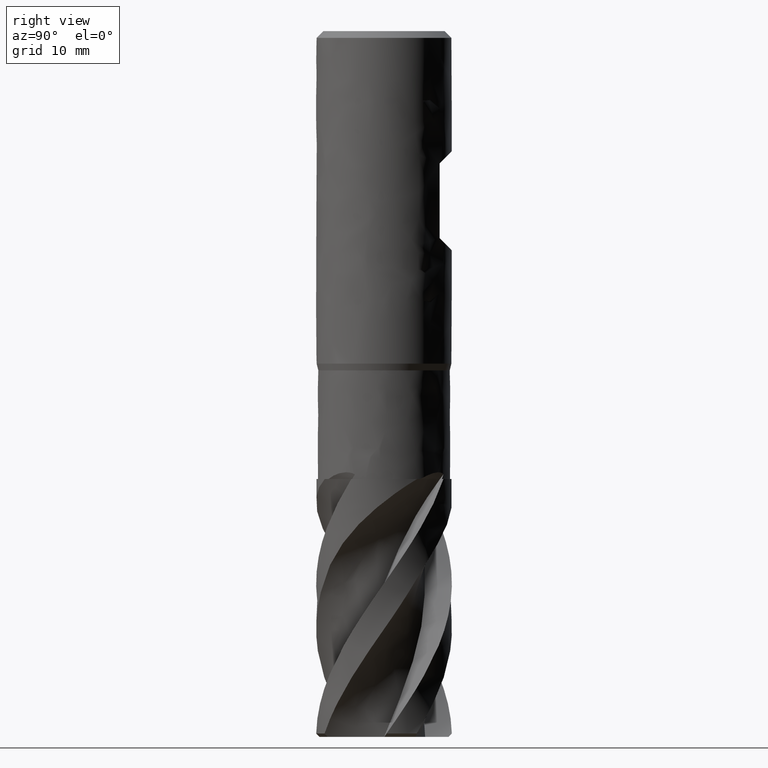
[diagram: clean part render]
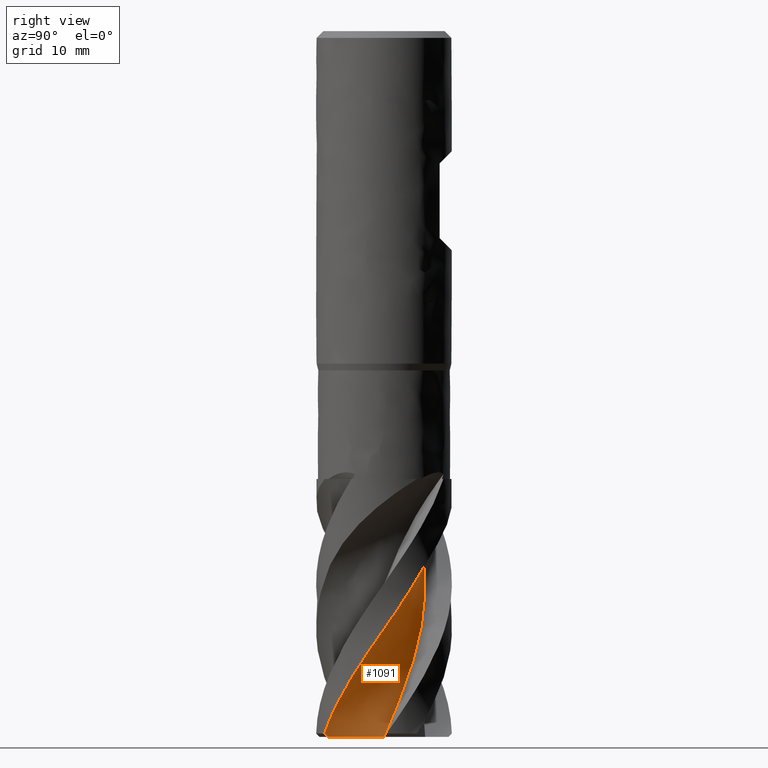
[diagram: same view with one face highlighted and labeled with its STEP entity id]
A machine part, right view. The second image highlights one B-rep face of the part: STEP entity #1091.
In plain terms, the highlighted face is a freeform B-spline surface patch.
Its self-contained STEP definition (entity closure, byte-faithful):
#1091 = ADVANCED_FACE('', (#1092), #1348, .T.);
#1092 = FACE_OUTER_BOUND('', #1093, .T.);
#1093 = EDGE_LOOP('', (#1094, #1104, #1299, #1311, #1319));
#1094 = ORIENTED_EDGE('', *, *, #1095, .F.);
#1095 = EDGE_CURVE('', #1096, #1098, #1100, .T.);
#1096 = VERTEX_POINT('', #1097);
#1097 = CARTESIAN_POINT('', (-4.8692228382424, 8.73445298524977, -66.));
#1098 = VERTEX_POINT('', #1099);
#1099 = CARTESIAN_POINT('', (-8.24481654069184, 4.54373744884962, -66.));
#1100 = LINE('', #1101, #1102);
#1101 = CARTESIAN_POINT('', (-4.8692228382424, 8.73445298524977, -66.));
#1102 = VECTOR('', #1103, 5.38114574705442);
#1103 = DIRECTION('', (-3.37559370244944, -4.19071553640015, 0.));
#1104 = ORIENTED_EDGE('', *, *, #1105, .F.);
#1105 = EDGE_CURVE('', #1106, #1096, #1108, .T.);
#1106 = VERTEX_POINT('', #1107);
#1107 = CARTESIAN_POINT('', (4.82102434027679, -8.76114857255934, -103.5));
#1108 = B_SPLINE_CURVE_WITH_KNOTS('', 3, (#1109, #1110, #1111, #1112, #1113, #1114, #1115, #1116, #1117, #1118, #1119, #1120, #1121, #1122, #1123, #1124, #1125, #1126, #1127, #1128, #1129, #1130, #1131, #1132, #1133, #1134, #1135, #1136, #1137, #1138, #1139, #1140, #1141, #1142, #1143, #1144, #1145, #1146, #1147, #1148, #1149, #1150, #1151, #1152, #1153, #1154, #1155, #1156, #1157, #1158, #1159, #1160, #1161, #1162, #1163, #1164, #1165, #1166, #1167, #1168, #1169, #1170, #1171, #1172, #1173, #1174, #1175, #1176, #1177, #1178, #1179, #1180, #1181, #1182, #1183, #1184, #1185, #1186, #1187, #1188, #1189, #1190, #1191, #1192, #1193, #1194, #1195, #1196, #1197, #1198, #1199, #1200, #1201, #1202, #1203, #1204, #1205, #1206, #1207, #1208, #1209, #1210, #1211, #1212, #1213, #1214, #1215, #1216, #1217, #1218, #1219, #1220, #1221, #1222, #1223, #1224, #1225, #1226, #1227, #1228, #1229, #1230, #1231, #1232, #1233, #1234, #1235, #1236, #1237, #1238, #1239, #1240, #1241, #1242, #1243, #1244, #1245, #1246, #1247, #1248, #1249, #1250, #1251, #1252, #1253, #1254, #1255, #1256, #1257, #1258, #1259, #1260, #1261, #1262, #1263, #1264, #1265, #1266, #1267, #1268, #1269, #1270, #1271, #1272, #1273, #1274, #1275, #1276, #1277, #1278, #1279, #1280, #1281, #1282, #1283, #1284, #1285, #1286, #1287, #1288, #1289, #1290, #1291, #1292, #1293, #1294, #1295, #1296, #1297, #1298), .UNSPECIFIED., .F., .U., (4, 3, 3, 3, 3, 3, 3, 3, 3, 3, 3, 3, 3, 3, 3, 3, 3, 3, 3, 3, 3, 3, 3, 3, 3, 3, 3, 3, 3, 3, 3, 3, 3, 3, 3, 3, 3, 3, 3, 3, 3, 3, 3, 3, 3, 3, 3, 3, 3, 3, 3, 3, 3, 3, 3, 3, 3, 3, 3, 3, 3, 3, 3, 4), (0., 1.49754865878035, 2.9946564324197, 4.4913227213965, 5.48887938148267, 6.48630614610458, 7.48360218909773, 8.48076755739883, 9.47780094344113, 10.4747017808828, 11.4714686570907, 12.468100568227, 13.4645954044111, 14.4609512740092, 15.4571669964957, 16.4532380941348, 17.4491618672605, 18.4449482064508, 18.641926417188, 18.7294906373654, 19.7288855633041, 20.1725885448589, 20.6162813108669, 21.6153525150667, 22.2810030914839, 23.7799583920081, 24.4454859465234, 25.4439228240565, 25.8874290066121, 26.3309380755024, 26.7744905960932, 27.218055734242, 27.6616013664374, 27.8586778512121, 28.5240455080343, 29.1894029692963, 29.8547809505871, 30.8531823312348, 31.8515130529255, 32.8497897681561, 33.8480551389011, 34.8462995150205, 35.8445019418809, 36.842653307668, 37.8407277951894, 38.8387112350426, 39.5038676079721, 40.1689758965266, 40.8340278425068, 41.4990041445852, 42.163896140861, 42.828693616057, 43.2718947109043, 43.3302773688159, 43.9993215176086, 44.6683759008422, 45.3374370949522, 46.0064956341405, 46.675534840082, 47.3445481982361, 48.013526469005, 48.6824569335344, 49.351322382157, 49.4218261233385), .UNSPECIFIED.);
#1109 = CARTESIAN_POINT('', (4.8210243402768, -8.76114857255934, -103.5));
#1110 = CARTESIAN_POINT('', (5.06933176543663, -8.62451167721933, -103.089077458178));
#1111 = CARTESIAN_POINT('', (5.31197264230089, -8.47722758047882, -102.678094176002));
#1112 = CARTESIAN_POINT('', (5.5479417083475, -8.31987636932053, -102.267311082202));
#1113 = CARTESIAN_POINT('', (5.78384130402708, -8.16257148307497, -101.856648924816));
#1114 = CARTESIAN_POINT('', (6.0132085196084, -7.99511345603136, -101.445946114455));
#1115 = CARTESIAN_POINT('', (6.23505221071147, -7.81819185807703, -101.035433046596));
#1116 = CARTESIAN_POINT('', (6.45683048195043, -7.6413224328342, -100.625041035635));
#1117 = CARTESIAN_POINT('', (6.67121654320606, -7.45489464995635, -100.214595849154));
#1118 = CARTESIAN_POINT('', (6.87729953648057, -7.2596660450412, -99.8043452068072));
#1119 = CARTESIAN_POINT('', (7.01465778660326, -7.12954245202196, -99.5309053200457));
#1120 = CARTESIAN_POINT('', (7.14837211475213, -6.99547065944866, -99.2574610161364));
#1121 = CARTESIAN_POINT('', (7.27818676127804, -6.85769622161532, -98.9840836728247));
#1122 = CARTESIAN_POINT('', (7.40798450416885, -6.71993972389033, -98.7107419269665));
#1123 = CARTESIAN_POINT('', (7.53391871224153, -6.5784442326247, -98.4373970073934));
#1124 = CARTESIAN_POINT('', (7.65574710421175, -6.43347000275538, -98.1641199824946));
#1125 = CARTESIAN_POINT('', (7.7775595294901, -6.28851477304539, -97.890878772975));
#1126 = CARTESIAN_POINT('', (7.8952977037658, -6.14004547585186, -97.6176324699006));
#1127 = CARTESIAN_POINT('', (8.0087356025241, -5.98833483105804, -97.3444534671684));
#1128 = CARTESIAN_POINT('', (8.12215863762923, -5.8366440647566, -97.0713102588047));
#1129 = CARTESIAN_POINT('', (8.23131311459079, -5.68167180659219, -96.7981638231249));
#1130 = CARTESIAN_POINT('', (8.33598712083889, -5.52370516240757, -96.5250851211179));
#1131 = CARTESIAN_POINT('', (8.44064727270314, -5.36575942628412, -96.2520425631098));
#1132 = CARTESIAN_POINT('', (8.54085446400764, -5.20478046763777, -95.9789945717451));
#1133 = CARTESIAN_POINT('', (8.63641514457152, -5.04106471398807, -95.7060144446873));
#1134 = CARTESIAN_POINT('', (8.7319631210127, -4.87737072520035, -95.4330706084241));
#1135 = CARTESIAN_POINT('', (8.82289134904552, -4.71089676339513, -95.160123534287));
#1136 = CARTESIAN_POINT('', (8.90902105913758, -4.54195373906902, -94.8872437015907));
#1137 = CARTESIAN_POINT('', (8.99513919531797, -4.37303341691664, -94.6144005378567));
#1138 = CARTESIAN_POINT('', (9.07648190042256, -4.20160216996309, -94.3415512685048));
#1139 = CARTESIAN_POINT('', (9.15289089379604, -4.02797570576903, -94.0687705557064));
#1140 = CARTESIAN_POINT('', (9.22928954117439, -3.85437275109229, -93.7960267781927));
#1141 = CARTESIAN_POINT('', (9.30077608163202, -3.67852883038715, -93.5232799886487));
#1142 = CARTESIAN_POINT('', (9.3672078875395, -3.50077368471855, -93.2506010002422));
#1143 = CARTESIAN_POINT('', (9.43363055653642, -3.3230429871715, -92.9779595156112));
#1144 = CARTESIAN_POINT('', (9.4950170498378, -3.14335580073911, -92.7053129350069));
#1145 = CARTESIAN_POINT('', (9.55124483625152, -2.96204694054277, -92.4327343514784));
#1146 = CARTESIAN_POINT('', (9.60746478139678, -2.78076336484607, -92.1601937805054));
#1147 = CARTESIAN_POINT('', (9.65854222083171, -2.5978105430186, -91.887649085124));
#1148 = CARTESIAN_POINT('', (9.70437237413134, -2.41353616591854, -91.6151691209638));
#1149 = CARTESIAN_POINT('', (9.75019608097563, -2.22928770879593, -91.3427274837519));
#1150 = CARTESIAN_POINT('', (9.79078614235025, -2.04367043289176, -91.0702775416893));
#1151 = CARTESIAN_POINT('', (9.8260608138677, -1.85702150826909, -90.797899810892));
#1152 = CARTESIAN_POINT('', (9.86133036441197, -1.67039968025977, -90.5255616223213));
#1153 = CARTESIAN_POINT('', (9.891295225092, -1.48269698485618, -90.2532232687063));
#1154 = CARTESIAN_POINT('', (9.91589020080265, -1.2942648591484, -89.9809584013251));
#1155 = CARTESIAN_POINT('', (9.94048153877817, -1.10586060361103, -89.7087338034478));
#1156 = CARTESIAN_POINT('', (9.95971051028876, -0.91667827427532, -89.4365093701406));
#1157 = CARTESIAN_POINT('', (9.97353155049018, -0.727095874955745, -89.1643428369051));
#1158 = CARTESIAN_POINT('', (9.98735068343726, -0.537539637332398, -88.8922138616823));
#1159 = CARTESIAN_POINT('', (9.9957671604, -0.347529924403605, -88.6200724487908));
#1160 = CARTESIAN_POINT('', (9.99876034984672, -0.157453060732589, -88.3479722071021));
#1161 = CARTESIAN_POINT('', (9.99935243780617, -0.119853628972055, -88.294147589672));
#1162 = CARTESIAN_POINT('', (9.99973241650497, -0.0822515452989682, -88.2403220735981));
#1163 = CARTESIAN_POINT('', (9.9999003073346, -0.044652473273989, -88.1864942102382));
#1164 = CARTESIAN_POINT('', (9.99997494112031, -0.0279382722009901, -88.1625657012865));
#1165 = CARTESIAN_POINT('', (10.0000076660169, -0.0112246089065598, -88.1386366492696));
#1166 = CARTESIAN_POINT('', (9.99999849407855, 0.00548802575965491, -88.1147069316208));
#1167 = CARTESIAN_POINT('', (9.99989381218203, 0.196233997694817, -87.8415903738653));
#1168 = CARTESIAN_POINT('', (9.9943229178705, 0.386867114845846, -87.5683427925541));
#1169 = CARTESIAN_POINT('', (9.98335700972081, 0.576699936239934, -87.2948104550361));
#1170 = CARTESIAN_POINT('', (9.97848845774481, 0.660980320964121, -87.1733698607742));
#1171 = CARTESIAN_POINT('', (9.97255742885975, 0.74511128721054, -87.0518634268069));
#1172 = CARTESIAN_POINT('', (9.96557551684418, 0.829038369483475, -86.9302813485715));
#1173 = CARTESIAN_POINT('', (9.95859376557591, 0.912963519470459, -86.8087020695676));
#1174 = CARTESIAN_POINT('', (9.95056129854452, 0.996686228223349, -86.6870387049043));
#1175 = CARTESIAN_POINT('', (9.94148932971309, 1.08018049750992, -86.565300859055));
#1176 = CARTESIAN_POINT('', (9.92106180977304, 1.26818608730224, -86.2911815008703));
#1177 = CARTESIAN_POINT('', (9.89535813931469, 1.45507433450079, -86.0166370030639));
#1178 = CARTESIAN_POINT('', (9.86451136111236, 1.64055344517834, -85.7417719749637));
#1179 = CARTESIAN_POINT('', (9.84395909656436, 1.76413250182302, -85.5586378163345));
#1180 = CARTESIAN_POINT('', (9.82112119975915, 1.88710287799704, -85.3753343114277));
#1181 = CARTESIAN_POINT('', (9.79604112861646, 2.00937259025168, -85.1918856636466));
#1182 = CARTESIAN_POINT('', (9.73956419175387, 2.28470748782531, -84.7787840564258));
#1183 = CARTESIAN_POINT('', (9.67168650528452, 2.5566036423033, -84.3647826941756));
#1184 = CARTESIAN_POINT('', (9.59294486762857, 2.82407662194896, -83.9501625695236));
#1185 = CARTESIAN_POINT('', (9.55798403221916, 2.94283309052427, -83.7660736126908));
#1186 = CARTESIAN_POINT('', (9.52087519926613, 3.06074360660765, -83.581832506193));
#1187 = CARTESIAN_POINT('', (9.48167724976666, 3.17770302754322, -83.3974467218216));
#1188 = CARTESIAN_POINT('', (9.42287175322722, 3.35316773707284, -83.1208277215109));
#1189 = CARTESIAN_POINT('', (9.35935130877508, 3.52652152474307, -82.8438244944696));
#1190 = CARTESIAN_POINT('', (9.2913649620807, 3.69736894851187, -82.5664203912174));
#1191 = CARTESIAN_POINT('', (9.2611653913649, 3.77325946339587, -82.4431973436446));
#1192 = CARTESIAN_POINT('', (9.23008309563675, 3.8486611869761, -82.3198854704044));
#1193 = CARTESIAN_POINT('', (9.19814325777488, 3.92353929627966, -82.1964819887746));
#1194 = CARTESIAN_POINT('', (9.16620321204879, 3.99841789288936, -82.0730777040358));
#1195 = CARTESIAN_POINT('', (9.13340921204072, 4.07276981956737, -81.9495709463683));
#1196 = CARTESIAN_POINT('', (9.09967498960817, 4.14679576100626, -81.8261296628605));
#1197 = CARTESIAN_POINT('', (9.0659374621489, 4.22082895495308, -81.7026762854992));
#1198 = CARTESIAN_POINT('', (9.03125729942422, 4.29454045770886, -81.5792830420388));
#1199 = CARTESIAN_POINT('', (8.9955398635748, 4.36809598828102, -81.4561013889994));
#1200 = CARTESIAN_POINT('', (8.95982141168601, 4.44165361125742, -81.3329162318616));
#1201 = CARTESIAN_POINT('', (8.92306328648133, 4.5150594317706, -81.2099362509475));
#1202 = CARTESIAN_POINT('', (8.88517022557233, 4.58843655972304, -81.0872943834196));
#1203 = CARTESIAN_POINT('', (8.84727883102575, 4.6618104608871, -80.9646579091166));
#1204 = CARTESIAN_POINT('', (8.80824979853309, 4.73516042152218, -80.8423516907574));
#1205 = CARTESIAN_POINT('', (8.7679933800104, 4.80856445190183, -80.7204892228932));
#1206 = CARTESIAN_POINT('', (8.75010662185926, 4.84117937858686, -80.666343211639));
#1207 = CARTESIAN_POINT('', (8.73197658960017, 4.87380630442319, -80.6122841431315));
#1208 = CARTESIAN_POINT('', (8.71359833781752, 4.90644514971724, -80.5583174336352));
#1209 = CARTESIAN_POINT('', (8.65154986796029, 5.01664009275929, -80.3761155687856));
#1210 = CARTESIAN_POINT('', (8.58667660466838, 5.1269576137656, -80.1949253636102));
#1211 = CARTESIAN_POINT('', (8.51897941757993, 5.23707835370574, -80.0147005841439));
#1212 = CARTESIAN_POINT('', (8.45128326782885, 5.34719740624403, -79.8344785662975));
#1213 = CARTESIAN_POINT('', (8.38075104328958, 5.45714053429752, -79.6551892482231));
#1214 = CARTESIAN_POINT('', (8.30738365231508, 5.56663065536513, -79.4768129900779));
#1215 = CARTESIAN_POINT('', (8.23401399864562, 5.67612415317465, -79.2984312307005));
#1216 = CARTESIAN_POINT('', (8.15779609140809, 5.78518468998466, -79.1209290165671));
#1217 = CARTESIAN_POINT('', (8.07872783540295, 5.89356908515439, -78.9443135642512));
#1218 = CARTESIAN_POINT('', (7.96008571290919, 6.05620015023445, -78.679301621575));
#1219 = CARTESIAN_POINT('', (7.834973315312, 6.21737866904356, -78.4161987261904));
#1220 = CARTESIAN_POINT('', (7.70335952237291, 6.37638236534374, -78.1551397665836));
#1221 = CARTESIAN_POINT('', (7.57175504401764, 6.53537480861927, -77.8940992826662));
#1222 = CARTESIAN_POINT('', (7.43358720988196, 6.69226832134353, -77.6349841473585));
#1223 = CARTESIAN_POINT('', (7.28888153510546, 6.84632791846832, -77.377950339841));
#1224 = CARTESIAN_POINT('', (7.14418368843747, 7.00037918146768, -77.1209304370204));
#1225 = CARTESIAN_POINT('', (6.99288699350944, 7.15165985561167, -76.8658514070721));
#1226 = CARTESIAN_POINT('', (6.83513391350451, 7.29937972600827, -76.6128271107152));
#1227 = CARTESIAN_POINT('', (6.67738262621651, 7.44709791770603, -76.3598056897438));
#1228 = CARTESIAN_POINT('', (6.51309064163799, 7.59133513209592, -76.1087063128745));
#1229 = CARTESIAN_POINT('', (6.34244219374665, 7.73132763624607, -75.859693906991));
#1230 = CARTESIAN_POINT('', (6.17179733478104, 7.87131719619893, -75.610686738114));
#1231 = CARTESIAN_POINT('', (5.99470436163938, 8.00713609310058, -75.3636199040151));
#1232 = CARTESIAN_POINT('', (5.81144784077525, 8.13800184283272, -75.1186453787126));
#1233 = CARTESIAN_POINT('', (5.62819902090643, 8.2688620931888, -74.8736811479834));
#1234 = CARTESIAN_POINT('', (5.43867601492786, 8.39484933555393, -74.6306615625604));
#1235 = CARTESIAN_POINT('', (5.24321138959775, 8.51520606468173, -74.3897884685015));
#1236 = CARTESIAN_POINT('', (5.04775676287445, 8.63555663719879, -74.1489276958298));
#1237 = CARTESIAN_POINT('', (4.84623390109916, 8.75035392366979, -73.9100585367206));
#1238 = CARTESIAN_POINT('', (4.63908722517437, 8.85883004223605, -73.6733649170795));
#1239 = CARTESIAN_POINT('', (4.43195650382093, 8.96729780590131, -73.4366895277344));
#1240 = CARTESIAN_POINT('', (4.21905967311638, 9.06952058134919, -73.2020266263435));
#1241 = CARTESIAN_POINT('', (4.00089193788711, 9.16476206463376, -72.9696142115046));
#1242 = CARTESIAN_POINT('', (3.78274410464295, 9.25999485967403, -72.7372229980977));
#1243 = CARTESIAN_POINT('', (3.55915793074333, 9.3483197838594, -72.5069192763265));
#1244 = CARTESIAN_POINT('', (3.33073455857908, 9.42900881854965, -72.2789379586733));
#1245 = CARTESIAN_POINT('', (3.17849028712759, 9.48278809334168, -72.1269883167352));
#1246 = CARTESIAN_POINT('', (3.02403377008233, 9.5331997756051, -71.9760043569644));
#1247 = CARTESIAN_POINT('', (2.86755858287005, 9.58003694010687, -71.8260676433803));
#1248 = CARTESIAN_POINT('', (2.71109470730098, 9.62687071873447, -71.676141768771));
#1249 = CARTESIAN_POINT('', (2.5525552768412, 9.67014760122732, -71.5272082878372));
#1250 = CARTESIAN_POINT('', (2.39214560469936, 9.70966731695387, -71.3793602435207));
#1251 = CARTESIAN_POINT('', (2.23174952116263, 9.74918368489095, -71.2315247236901));
#1252 = CARTESIAN_POINT('', (2.06941994279842, 9.78495894398057, -71.0847205890178));
#1253 = CARTESIAN_POINT('', (1.90538706904953, 9.8167968358882, -70.9390382193192));
#1254 = CARTESIAN_POINT('', (1.74137285262003, 9.84863110651124, -70.793372419729));
#1255 = CARTESIAN_POINT('', (1.57559109822755, 9.87654138838005, -70.6487687334945));
#1256 = CARTESIAN_POINT('', (1.40828676405985, 9.90033981185397, -70.5053270939466));
#1257 = CARTESIAN_POINT('', (1.24100364076261, 9.92413521815993, -70.3619036399529));
#1258 = CARTESIAN_POINT('', (1.07212823137592, 9.94382975632541, -70.2195818872802));
#1259 = CARTESIAN_POINT('', (0.901917880329583, 9.95924415491209, -70.0784755990797));
#1260 = CARTESIAN_POINT('', (0.731731726395322, 9.97465636218709, -69.9373893705562));
#1261 = CARTESIAN_POINT('', (0.560136156924454, 9.98579638017434, -69.7974563311105));
#1262 = CARTESIAN_POINT('', (0.387402217706497, 9.99249315845231, -69.6588045139355));
#1263 = CARTESIAN_POINT('', (0.272245536408774, 9.99695770528872, -69.5663693897551));
#1264 = CARTESIAN_POINT('', (0.156554242652449, 9.99944894445884, -69.4744799677238));
#1265 = CARTESIAN_POINT('', (0.0404155178051998, 9.99991832896255, -69.3831737692637));
#1266 = CARTESIAN_POINT('', (0.0251166218370319, 9.99998016074777, -69.3711460495403));
#1267 = CARTESIAN_POINT('', (0.00980972678597109, 10.000006915453, -69.3591282659154));
#1268 = CARTESIAN_POINT('', (-0.00550496473668832, 9.99999848476805, -69.3471205086207));
#1269 = CARTESIAN_POINT('', (-0.181005791871271, 9.99990187216695, -69.2095159519683));
#1270 = CARTESIAN_POINT('', (-0.357578943349663, 9.99518256313596, -69.0731899632413));
#1271 = CARTESIAN_POINT('', (-0.534911776305566, 9.98568322107055, -68.9382885454334));
#1272 = CARTESIAN_POINT('', (-0.712247321941014, 9.97618373369268, -68.8033850640239));
#1273 = CARTESIAN_POINT('', (-0.890433409282681, 9.96189913866606, -68.669837045429));
#1274 = CARTESIAN_POINT('', (-1.0691421822549, 9.94268248482891, -68.5378106087554));
#1275 = CARTESIAN_POINT('', (-1.24785277445648, 9.92346563536902, -68.4057828280718));
#1276 = CARTESIAN_POINT('', (-1.42718285749289, 9.89930613281671, -68.275205056872));
#1277 = CARTESIAN_POINT('', (-1.60678776863816, 9.87006753100279, -68.1462660092685));
#1278 = CARTESIAN_POINT('', (-1.78639196708784, 9.84082904521143, -68.0173274733119));
#1279 = CARTESIAN_POINT('', (-1.96637451315068, 9.80649433465608, -67.8899541627044));
#1280 = CARTESIAN_POINT('', (-2.14636166678813, 9.76694074904438, -67.7643442841219));
#1281 = CARTESIAN_POINT('', (-2.32634361948146, 9.72738830638085, -67.6387380351871));
#1282 = CARTESIAN_POINT('', (-2.50644007856068, 9.68259304944388, -67.5148181121587));
#1283 = CARTESIAN_POINT('', (-2.68626013515158, 9.63244550912681, -67.3928148325502));
#1284 = CARTESIAN_POINT('', (-2.86607324454037, 9.58229990621932, -67.2708162664396));
#1285 = CARTESIAN_POINT('', (-3.04572727486001, 9.52676959837258, -67.1506542778143));
#1286 = CARTESIAN_POINT('', (-3.22481185865367, 9.46575873748588, -67.0325976277119));
#1287 = CARTESIAN_POINT('', (-3.40388705009409, 9.40475107640312, -66.9145471692635));
#1288 = CARTESIAN_POINT('', (-3.58251838138313, 9.33822050386304, -66.798518601188));
#1289 = CARTESIAN_POINT('', (-3.76027304557863, 9.26608583074329, -66.6848276255973));
#1290 = CARTESIAN_POINT('', (-3.93801500714623, 9.19395631248075, -66.5711447745426));
#1291 = CARTESIAN_POINT('', (-4.11501530448497, 9.11616852454961, -66.4597122307081));
#1292 = CARTESIAN_POINT('', (-4.29081487779879, 9.03265784165771, -66.3509044240202));
#1293 = CARTESIAN_POINT('', (-4.46659736448063, 8.94915527548806, -66.2421071927787));
#1294 = CARTESIAN_POINT('', (-4.64132509888183, 8.85986135696946, -66.1358430027346));
#1295 = CARTESIAN_POINT('', (-4.81450771405765, 8.76473134050779, -66.0325615403337));
#1296 = CARTESIAN_POINT('', (-4.83276253990137, 8.75470387971875, -66.0216748522727));
#1297 = CARTESIAN_POINT('', (-4.85100111381993, 8.74461110698446, -66.0108208102882));
#1298 = CARTESIAN_POINT('', (-4.8692228382424, 8.73445298524977, -66.));
#1299 = ORIENTED_EDGE('', *, *, #1300, .F.);
#1300 = EDGE_CURVE('', #1301, #1106, #1303, .T.);
#1301 = VERTEX_POINT('', #1302);
#1302 = CARTESIAN_POINT('', (4.62371289531529, -8.29887215600379, -104.));
#1303 = B_SPLINE_CURVE_WITH_KNOTS('', 3, (#1304, #1305, #1306, #1307, #1308, #1309, #1310), .UNSPECIFIED., .F., .U., (4, 3, 4), (0., 0.444245753266173, 0.709054296260552), .UNSPECIFIED.);
#1304 = CARTESIAN_POINT('', (4.62371289531529, -8.29887215600379, -104.));
#1305 = CARTESIAN_POINT('', (4.66049691470305, -8.3975502868541, -103.895895164494));
#1306 = CARTESIAN_POINT('', (4.70012945210628, -8.4949180770608, -103.791510783005));
#1307 = CARTESIAN_POINT('', (4.74246166665453, -8.5909163780952, -103.687009279781));
#1308 = CARTESIAN_POINT('', (4.76769529460444, -8.64813959303864, -103.624717427566));
#1309 = CARTESIAN_POINT('', (4.79389316604008, -8.70488778932475, -103.56237091321));
#1310 = CARTESIAN_POINT('', (4.82102434027679, -8.76114857255934, -103.5));
#1311 = ORIENTED_EDGE('', *, *, #1312, .F.);
#1312 = EDGE_CURVE('', #1313, #1301, #1315, .T.);
#1313 = VERTEX_POINT('', #1314);
#1314 = CARTESIAN_POINT('', (6.05980952317125, 0.0210061638817328, -104.));
#1315 = LINE('', #1316, #1317);
#1316 = CARTESIAN_POINT('', (6.05980952317125, 0.0210061638817328, -104.));
#1317 = VECTOR('', #1318, 8.44291115565244);
#1318 = DIRECTION('', (-1.43609662785598, -8.31987831988552, -1.4210854715202E-14));
#1319 = ORIENTED_EDGE('', *, *, #1320, .T.);
#1320 = EDGE_CURVE('', #1313, #1098, #1321, .T.);
#1321 = B_SPLINE_CURVE_WITH_KNOTS('', 3, (#1322, #1323, #1324, #1325, #1326, #1327, #1328, #1329, #1330, #1331, #1332, #1333, #1334, #1335, #1336, #1337, #1338, #1339, #1340, #1341, #1342, #1343, #1344, #1345, #1346, #1347), .UNSPECIFIED., .F., .U., (4, 1, 1, 1, 1, 1, 1, 1, 1, 1, 1, 1, 1, 1, 1, 1, 1, 1, 1, 1, 1, 1, 1, 4), (0.0500000000000108, 3.124, 4.686, 6.248, 7.81, 9.372, 10.934, 12.496, 14.058, 15.62, 17.182, 18.744, 20.306, 21.868, 23.43, 24.992, 26.554, 28.116, 29.678, 31.24, 32.802, 34.364, 35.926, 38.05), .UNSPECIFIED.);
#1322 = CARTESIAN_POINT('', (6.05980952317125, 0.0210061638817323, -104.));
#1323 = CARTESIAN_POINT('', (6.05516728982624, 0.451478921269706, -102.975333333333));
#1324 = CARTESIAN_POINT('', (5.97968307938365, 1.0993567282596, -101.43));
#1325 = CARTESIAN_POINT('', (5.74506389234829, 1.93499733724724, -99.364));
#1326 = CARTESIAN_POINT('', (5.50162236334445, 2.54422500359819, -97.802));
#1327 = CARTESIAN_POINT('', (5.19483514754468, 3.12412444108723, -96.24));
#1328 = CARTESIAN_POINT('', (4.82810837840586, 3.66824456030732, -94.678));
#1329 = CARTESIAN_POINT('', (4.40548017147386, 4.17050613968466, -93.116));
#1330 = CARTESIAN_POINT('', (3.93161951667553, 4.62530372034135, -91.554));
#1331 = CARTESIAN_POINT('', (3.41164718816435, 5.02741938781425, -89.992));
#1332 = CARTESIAN_POINT('', (2.85157204005347, 5.37261513881707, -88.43));
#1333 = CARTESIAN_POINT('', (2.25641080543849, 5.65567038822671, -86.868));
#1334 = CARTESIAN_POINT('', (1.6288917266653, 5.85778492249726, -85.306));
#1335 = CARTESIAN_POINT('', (0.982432836130104, 5.97804394589137, -83.744));
#1336 = CARTESIAN_POINT('', (0.327622832683394, 6.01431876480561, -82.182));
#1337 = CARTESIAN_POINT('', (-0.320183963239841, 5.96505771265828, -80.62));
#1338 = CARTESIAN_POINT('', (-0.966344318816843, 5.93773006534497, -79.058));
#1339 = CARTESIAN_POINT('', (-1.6312431577963, 5.91226307926383, -77.496));
#1340 = CARTESIAN_POINT('', (-2.33066014168337, 5.88528136029756, -75.934));
#1341 = CARTESIAN_POINT('', (-3.07928433564887, 5.84342040346166, -74.372));
#1342 = CARTESIAN_POINT('', (-3.88873048805124, 5.77096522685264, -72.81));
#1343 = CARTESIAN_POINT('', (-4.76710713012934, 5.64846437319031, -71.248));
#1344 = CARTESIAN_POINT('', (-5.71832667276983, 5.4539111476265, -69.686));
#1345 = CARTESIAN_POINT('', (-6.86417230553522, 5.12855741870002, -67.9366666666667));
#1346 = CARTESIAN_POINT('', (-7.7304629707723, 4.78778915362057, -66.708));
#1347 = CARTESIAN_POINT('', (-8.24481654069184, 4.54373744884962, -66.));
#1348 = B_SPLINE_SURFACE_WITH_KNOTS('', 3, 1, ((#1349, #1350), (#1351, #1352), (#1353, #1354), (#1355, #1356), (#1357, #1358), (#1359, #1360), (#1361, #1362), (#1363, #1364), (#1365, #1366), (#1367, #1368), (#1369, #1370), (#1371, #1372), (#1373, #1374), (#1375, #1376), (#1377, #1378), (#1379, #1380), (#1381, #1382), (#1383, #1384), (#1385, #1386), (#1387, #1388), (#1389, #1390), (#1391, #1392), (#1393, #1394), (#1395, #1396), (#1397, #1398), (#1399, #1400)), .UNSPECIFIED., .F., .F., .U., (4, 1, 1, 1, 1, 1, 1, 1, 1, 1, 1, 1, 1, 1, 1, 1, 1, 1, 1, 1, 1, 1, 1, 4), (2, 2), (0.0500000000000028, 3.124, 4.686, 6.248, 7.81, 9.372, 10.934, 12.496, 14.058, 15.62, 17.182, 18.744, 20.306, 21.868, 23.43, 24.992, 26.554, 28.116, 29.678, 31.24, 32.802, 34.364, 35.926, 38.0500000000039), (0., 0.887252185996353), .UNSPECIFIED.);
#1349 = CARTESIAN_POINT('', (6.05980952317125, 0.021006163881729, -104.));
#1350 = CARTESIAN_POINT('', (4.48693283489788, -9.09129338810315, -104.));
#1351 = CARTESIAN_POINT('', (6.05516728982624, 0.451478921269704, -102.975333333333));
#1352 = CARTESIAN_POINT('', (5.13043815784113, -8.76781974273512, -102.975333333333));
#1353 = CARTESIAN_POINT('', (5.97968307938365, 1.0993567282596, -101.43));
#1354 = CARTESIAN_POINT('', (6.04857652637291, -8.17804101622794, -101.43));
#1355 = CARTESIAN_POINT('', (5.74506389234829, 1.93499733724724, -99.364));
#1356 = CARTESIAN_POINT('', (7.1318854769909, -7.21106359512252, -99.364));
#1357 = CARTESIAN_POINT('', (5.50162236334445, 2.54422500359819, -97.802));
#1358 = CARTESIAN_POINT('', (7.86845249749558, -6.39729386907718, -97.802));
#1359 = CARTESIAN_POINT('', (5.19483514754468, 3.12412444108723, -96.24));
#1360 = CARTESIAN_POINT('', (8.51437102203535, -5.50989070522847, -96.24));
#1361 = CARTESIAN_POINT('', (4.82810837840586, 3.66824456030732, -94.678));
#1362 = CARTESIAN_POINT('', (9.06245059137937, -4.55871591841782, -94.678));
#1363 = CARTESIAN_POINT('', (4.40548017147386, 4.17050613968466, -93.116));
#1364 = CARTESIAN_POINT('', (9.50652424603514, -3.55430766296294, -93.116));
#1365 = CARTESIAN_POINT('', (3.93161951667553, 4.62530372034135, -91.554));
#1366 = CARTESIAN_POINT('', (9.84160084036834, -2.50780385164203, -91.554));
#1367 = CARTESIAN_POINT('', (3.41164718816435, 5.02741938781425, -89.992));
#1368 = CARTESIAN_POINT('', (10.0636038001986, -1.43073640777471, -89.992));
#1369 = CARTESIAN_POINT('', (2.85157204005347, 5.37261513881707, -88.43));
#1370 = CARTESIAN_POINT('', (10.1705821155382, -0.335251407611656, -88.43));
#1371 = CARTESIAN_POINT('', (2.25641080543849, 5.65567038822671, -86.868));
#1372 = CARTESIAN_POINT('', (10.1583787044214, 0.767273615837304, -86.868));
#1373 = CARTESIAN_POINT('', (1.6288917266653, 5.85778492249726, -85.306));
#1374 = CARTESIAN_POINT('', (10.0007463225751, 1.85891612016675, -85.306));
#1375 = CARTESIAN_POINT('', (0.982432836130104, 5.97804394589137, -83.744));
#1376 = CARTESIAN_POINT('', (9.70617557042686, 2.91883877530922, -83.744));
#1377 = CARTESIAN_POINT('', (0.327622832683394, 6.01431876480561, -82.182));
#1378 = CARTESIAN_POINT('', (9.2792525755107, 3.92956370351719, -82.182));
#1379 = CARTESIAN_POINT('', (-0.320183963239841, 5.96505771265828, -80.62));
#1380 = CARTESIAN_POINT('', (8.72893446337289, 4.86687545546511, -80.62));
#1381 = CARTESIAN_POINT('', (-0.966344318816843, 5.93773006534497, -79.058));
#1382 = CARTESIAN_POINT('', (8.21278859011754, 5.81783905804148, -79.058));
#1383 = CARTESIAN_POINT('', (-1.6312431577963, 5.91226307926383, -77.496));
#1384 = CARTESIAN_POINT('', (7.68566180715182, 6.79833104403349, -77.496));
#1385 = CARTESIAN_POINT('', (-2.33066014168337, 5.88528136029756, -75.934));
#1386 = CARTESIAN_POINT('', (7.13087983227503, 7.82958353762347, -75.934));
#1387 = CARTESIAN_POINT('', (-3.07928433564887, 5.84342040346166, -74.372));
#1388 = CARTESIAN_POINT('', (6.51755849619484, 8.92384539291577, -74.372));
#1389 = CARTESIAN_POINT('', (-3.88873048805124, 5.77096522685264, -72.81));
#1390 = CARTESIAN_POINT('', (5.81354164660996, 10.0870172069376, -72.81));
#1391 = CARTESIAN_POINT('', (-4.76710713012934, 5.64846437319031, -71.248));
#1392 = CARTESIAN_POINT('', (4.9836358037456, 11.3169832257423, -71.248));
#1393 = CARTESIAN_POINT('', (-5.71832667276983, 5.4539111476265, -69.686));
#1394 = CARTESIAN_POINT('', (3.99189257424122, 12.6034430350355, -69.686));
#1395 = CARTESIAN_POINT('', (-6.86417230553608, 5.12855741869978, -67.9366666666654));
#1396 = CARTESIAN_POINT('', (2.6604858509349, 14.0862200446333, -67.9366666666654));
#1397 = CARTESIAN_POINT('', (-7.73046297077414, 4.78778915361985, -66.7079999999974));
#1398 = CARTESIAN_POINT('', (1.51145171817285, 15.1375460069946, -66.7079999999974));
#1399 = CARTESIAN_POINT('', (-8.24481654069469, 4.54373744884827, -65.9999999999961));
#1400 = CARTESIAN_POINT('', (0.766519465689795, 15.7310867374478, -65.9999999999961));